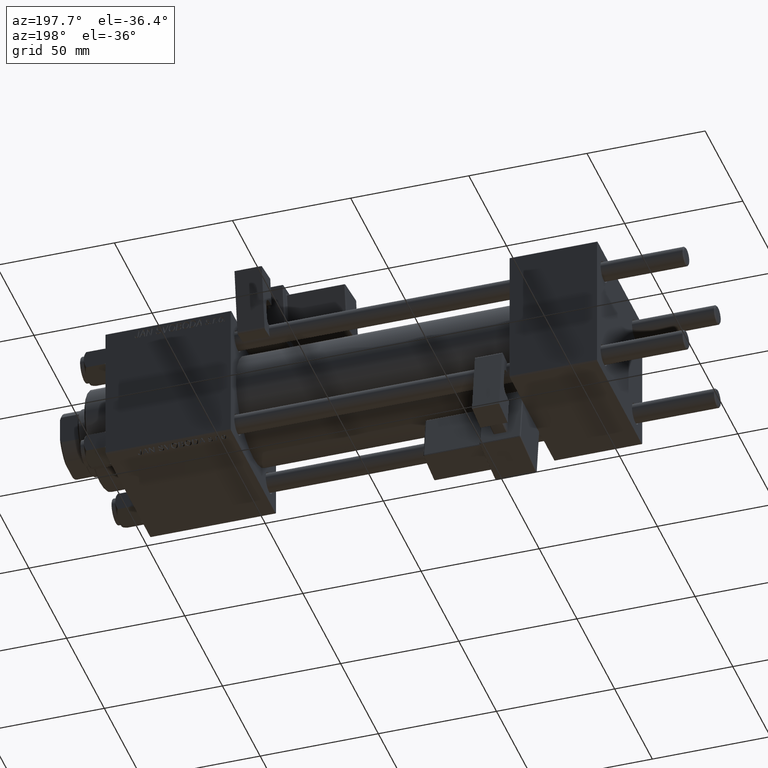
[diagram: clean part render]
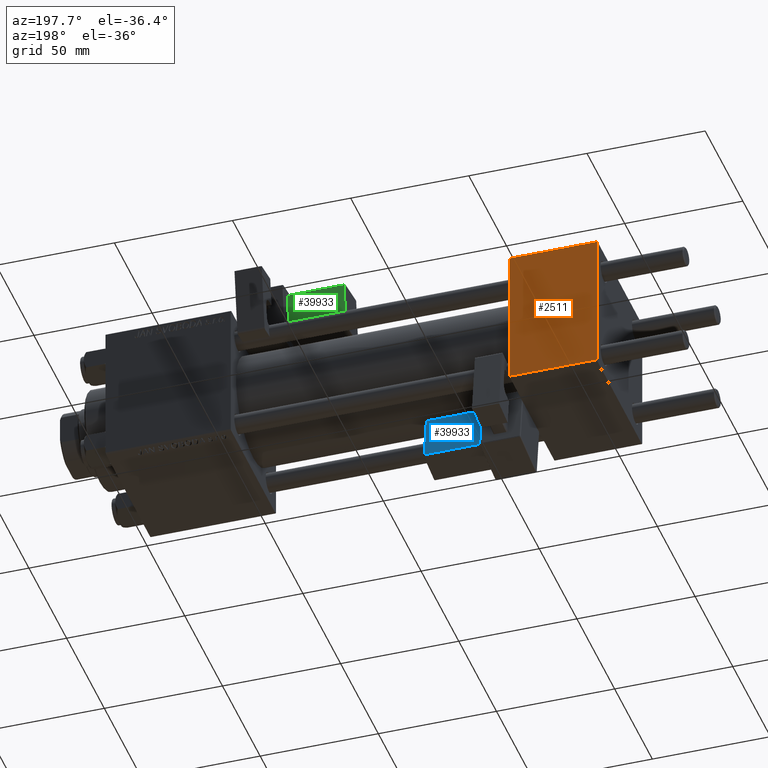
[diagram: same view with three faces highlighted in distinct colors, each labeled with its STEP entity id]
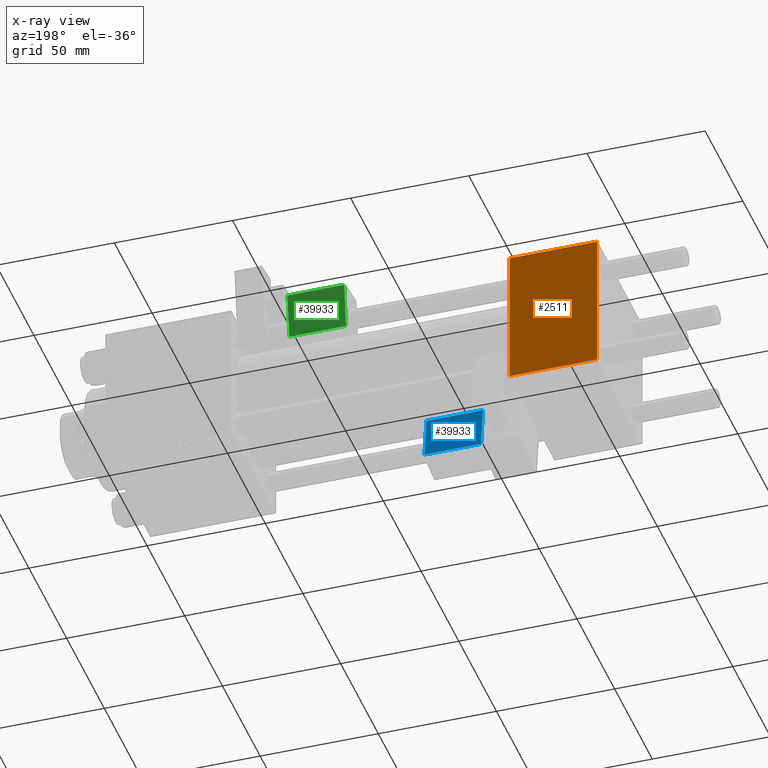
[diagram: x-ray of the same camera — body ghosted, the three highlighted faces saturated]
A machine part, auxiliary view with three faces highlighted in distinct colors.
The next image is the same camera in x-ray (body ghosted, the three faces saturated) — at least one of them is partly hidden behind the body in this view.
Their STEP definitions:

[orange] entity #2511 — the highlighted planar face has unit normal (0, 1, 0).
#1650 = DIRECTION ( 'NONE',  ( 0.000000000000000000, -0.000000000000000000, 1.000000000000000000 ) ) ;
#2511 = ADVANCED_FACE ( 'NONE', ( #18270 ), #42721, .T. ) ;
#3188 = EDGE_CURVE ( 'NONE', #26989, #27946, #31195, .T. ) ;
#7036 = LINE ( 'NONE', #46807, #44471 ) ;
#8151 = LINE ( 'NONE', #8415, #19174 ) ;
#8388 = CARTESIAN_POINT ( 'NONE',  ( 37.00000000000000000, 29.99999999999999289, -29.50000000000000000 ) ) ;
#8415 = CARTESIAN_POINT ( 'NONE',  ( 37.00000000000000000, 29.99999999999999289, 29.50000000000000000 ) ) ;
#9890 = CARTESIAN_POINT ( 'NONE',  ( 0.000000000000000000, 29.99999999999999289, 29.50000000000000000 ) ) ;
#12318 = VERTEX_POINT ( 'NONE', #29535 ) ;
#13428 = LINE ( 'NONE', #17645, #40431 ) ;
#15531 = EDGE_LOOP ( 'NONE', ( #27562, #27926, #25362, #43419 ) ) ;
#16028 = VERTEX_POINT ( 'NONE', #9890 ) ;
#17645 = CARTESIAN_POINT ( 'NONE',  ( 0.000000000000000000, 29.99999999999999289, 30.00000000000000000 ) ) ;
#18165 = DIRECTION ( 'NONE',  ( 0.000000000000000000, 0.000000000000000000, -1.000000000000000000 ) ) ;
#18270 = FACE_OUTER_BOUND ( 'NONE', #15531, .T. ) ;
#18808 = VECTOR ( 'NONE', #43063, 1000.000000000000000 ) ;
#19174 = VECTOR ( 'NONE', #19758, 1000.000000000000000 ) ;
#19357 = EDGE_CURVE ( 'NONE', #27946, #12318, #7036, .T. ) ;
#19758 = DIRECTION ( 'NONE',  ( 1.000000000000000000, 0.000000000000000000, 0.000000000000000000 ) ) ;
#21961 = DIRECTION ( 'NONE',  ( -0.000000000000000000, 1.000000000000000000, 0.000000000000000000 ) ) ;
#22821 = CARTESIAN_POINT ( 'NONE',  ( 37.00000000000000000, 29.99999999999999289, 30.00000000000000000 ) ) ;
#25362 = ORIENTED_EDGE ( 'NONE', *, *, #46375, .F. ) ;
#26989 = VERTEX_POINT ( 'NONE', #45500 ) ;
#27562 = ORIENTED_EDGE ( 'NONE', *, *, #3188, .T. ) ;
#27926 = ORIENTED_EDGE ( 'NONE', *, *, #19357, .T. ) ;
#27946 = VERTEX_POINT ( 'NONE', #8388 ) ;
#28850 = AXIS2_PLACEMENT_3D ( 'NONE', #33772, #21961, #1650 ) ;
#29535 = CARTESIAN_POINT ( 'NONE',  ( 0.000000000000000000, 29.99999999999999289, -29.50000000000000000 ) ) ;
#31195 = LINE ( 'NONE', #22821, #18808 ) ;
#33772 = CARTESIAN_POINT ( 'NONE',  ( 37.00000000000000000, 29.99999999999999289, 30.00000000000000000 ) ) ;
#34663 = EDGE_CURVE ( 'NONE', #16028, #26989, #8151, .T. ) ;
#40431 = VECTOR ( 'NONE', #18165, 1000.000000000000000 ) ;
#42319 = DIRECTION ( 'NONE',  ( -1.000000000000000000, 0.000000000000000000, 0.000000000000000000 ) ) ;
#42721 = PLANE ( 'NONE',  #28850 ) ;
#43063 = DIRECTION ( 'NONE',  ( 0.000000000000000000, 0.000000000000000000, -1.000000000000000000 ) ) ;
#43419 = ORIENTED_EDGE ( 'NONE', *, *, #34663, .T. ) ;
#44471 = VECTOR ( 'NONE', #42319, 1000.000000000000000 ) ;
#45500 = CARTESIAN_POINT ( 'NONE',  ( 37.00000000000000000, 29.99999999999999289, 29.50000000000000000 ) ) ;
#46375 = EDGE_CURVE ( 'NONE', #16028, #12318, #13428, .T. ) ;
#46807 = CARTESIAN_POINT ( 'NONE',  ( 37.00000000000000000, 29.99999999999999289, -29.50000000000000000 ) ) ;

[blue] entity #39933 — the highlighted planar face has unit normal (-0, -0.9902, -0.1399).
#555 = CARTESIAN_POINT ( 'NONE',  ( 33.25000000000000000, -17.24999999999999289, 21.50000000000000711 ) ) ;
#599 = VERTEX_POINT ( 'NONE', #21455 ) ;
#3202 = LINE ( 'NONE', #34558, #21904 ) ;
#9397 = LINE ( 'NONE', #25460, #22781 ) ;
#13515 = DIRECTION ( 'NONE',  ( 0.000000000000000000, -0.000000000000000000, -1.000000000000000000 ) ) ;
#14102 = ORIENTED_EDGE ( 'NONE', *, *, #25289, .T. ) ;
#15850 = LINE ( 'NONE', #31615, #21051 ) ;
#16089 = ORIENTED_EDGE ( 'NONE', *, *, #35808, .T. ) ;
#17019 = VERTEX_POINT ( 'NONE', #20654 ) ;
#18086 = DIRECTION ( 'NONE',  ( 1.000000000000000000, -0.000000000000000000, 1.334402673828313339E-16 ) ) ;
#19115 = VERTEX_POINT ( 'NONE', #23684 ) ;
#20654 = CARTESIAN_POINT ( 'NONE',  ( 9.250000000000001776, -17.24999999999999289, 21.50000000000000355 ) ) ;
#21051 = VECTOR ( 'NONE', #27691, 1000.000000000000000 ) ;
#21455 = CARTESIAN_POINT ( 'NONE',  ( 9.250000000000005329, -17.24999999999999289, 2.500000000000005773 ) ) ;
#21680 = FACE_OUTER_BOUND ( 'NONE', #39092, .T. ) ;
#21904 = VECTOR ( 'NONE', #31118, 1000.000000000000000 ) ;
#22781 = VECTOR ( 'NONE', #41500, 1000.000000000000000 ) ;
#23684 = CARTESIAN_POINT ( 'NONE',  ( 33.25000000000000000, -17.24999999999999289, 2.500000000000009326 ) ) ;
#25289 = EDGE_CURVE ( 'NONE', #599, #17019, #15850, .T. ) ;
#25460 = CARTESIAN_POINT ( 'NONE',  ( 33.75000000000000000, -17.24999999999999289, 2.500000000000009326 ) ) ;
#25983 = LINE ( 'NONE', #26246, #32613 ) ;
#26246 = CARTESIAN_POINT ( 'NONE',  ( 33.75000000000000000, -17.24999999999999289, 21.50000000000000711 ) ) ;
#26254 = EDGE_CURVE ( 'NONE', #45108, #19115, #3202, .T. ) ;
#26402 = CARTESIAN_POINT ( 'NONE',  ( 33.75000000000000000, -17.24999999999999289, 22.00000000000001066 ) ) ;
#27691 = DIRECTION ( 'NONE',  ( -1.334402673828313339E-16, 0.000000000000000000, 1.000000000000000000 ) ) ;
#27717 = AXIS2_PLACEMENT_3D ( 'NONE', #26402, #37963, #13515 ) ;
#30858 = ORIENTED_EDGE ( 'NONE', *, *, #42675, .T. ) ;
#31118 = DIRECTION ( 'NONE',  ( 1.734723475976807587E-16, -0.000000000000000000, -1.000000000000000000 ) ) ;
#31615 = CARTESIAN_POINT ( 'NONE',  ( 9.250000000000001776, -17.24999999999999289, 22.00000000000000711 ) ) ;
#32613 = VECTOR ( 'NONE', #18086, 1000.000000000000000 ) ;
#34558 = CARTESIAN_POINT ( 'NONE',  ( 33.25000000000000000, -17.24999999999999289, 2.000000000000010214 ) ) ;
#35808 = EDGE_CURVE ( 'NONE', #17019, #45108, #25983, .T. ) ;
#37448 = PLANE ( 'NONE',  #27717 ) ;
#37963 = DIRECTION ( 'NONE',  ( 0.000000000000000000, -1.000000000000000000, 0.000000000000000000 ) ) ;
#39092 = EDGE_LOOP ( 'NONE', ( #30858, #14102, #16089, #39187 ) ) ;
#39187 = ORIENTED_EDGE ( 'NONE', *, *, #26254, .T. ) ;
#39933 = ADVANCED_FACE ( 'NONE', ( #21680 ), #37448, .F. ) ;
#41500 = DIRECTION ( 'NONE',  ( -1.000000000000000000, 0.000000000000000000, -1.334402673828313339E-16 ) ) ;
#42675 = EDGE_CURVE ( 'NONE', #19115, #599, #9397, .T. ) ;
#45108 = VERTEX_POINT ( 'NONE', #555 ) ;

[green] entity #39933 — the highlighted planar face has unit normal (0, -0.9908, 0.1355).
#555 = CARTESIAN_POINT ( 'NONE',  ( 33.25000000000000000, -17.24999999999999289, 21.50000000000000711 ) ) ;
#599 = VERTEX_POINT ( 'NONE', #21455 ) ;
#3202 = LINE ( 'NONE', #34558, #21904 ) ;
#9397 = LINE ( 'NONE', #25460, #22781 ) ;
#13515 = DIRECTION ( 'NONE',  ( 0.000000000000000000, -0.000000000000000000, -1.000000000000000000 ) ) ;
#14102 = ORIENTED_EDGE ( 'NONE', *, *, #25289, .T. ) ;
#15850 = LINE ( 'NONE', #31615, #21051 ) ;
#16089 = ORIENTED_EDGE ( 'NONE', *, *, #35808, .T. ) ;
#17019 = VERTEX_POINT ( 'NONE', #20654 ) ;
#18086 = DIRECTION ( 'NONE',  ( 1.000000000000000000, -0.000000000000000000, 1.334402673828313339E-16 ) ) ;
#19115 = VERTEX_POINT ( 'NONE', #23684 ) ;
#20654 = CARTESIAN_POINT ( 'NONE',  ( 9.250000000000001776, -17.24999999999999289, 21.50000000000000355 ) ) ;
#21051 = VECTOR ( 'NONE', #27691, 1000.000000000000000 ) ;
#21455 = CARTESIAN_POINT ( 'NONE',  ( 9.250000000000005329, -17.24999999999999289, 2.500000000000005773 ) ) ;
#21680 = FACE_OUTER_BOUND ( 'NONE', #39092, .T. ) ;
#21904 = VECTOR ( 'NONE', #31118, 1000.000000000000000 ) ;
#22781 = VECTOR ( 'NONE', #41500, 1000.000000000000000 ) ;
#23684 = CARTESIAN_POINT ( 'NONE',  ( 33.25000000000000000, -17.24999999999999289, 2.500000000000009326 ) ) ;
#25289 = EDGE_CURVE ( 'NONE', #599, #17019, #15850, .T. ) ;
#25460 = CARTESIAN_POINT ( 'NONE',  ( 33.75000000000000000, -17.24999999999999289, 2.500000000000009326 ) ) ;
#25983 = LINE ( 'NONE', #26246, #32613 ) ;
#26246 = CARTESIAN_POINT ( 'NONE',  ( 33.75000000000000000, -17.24999999999999289, 21.50000000000000711 ) ) ;
#26254 = EDGE_CURVE ( 'NONE', #45108, #19115, #3202, .T. ) ;
#26402 = CARTESIAN_POINT ( 'NONE',  ( 33.75000000000000000, -17.24999999999999289, 22.00000000000001066 ) ) ;
#27691 = DIRECTION ( 'NONE',  ( -1.334402673828313339E-16, 0.000000000000000000, 1.000000000000000000 ) ) ;
#27717 = AXIS2_PLACEMENT_3D ( 'NONE', #26402, #37963, #13515 ) ;
#30858 = ORIENTED_EDGE ( 'NONE', *, *, #42675, .T. ) ;
#31118 = DIRECTION ( 'NONE',  ( 1.734723475976807587E-16, -0.000000000000000000, -1.000000000000000000 ) ) ;
#31615 = CARTESIAN_POINT ( 'NONE',  ( 9.250000000000001776, -17.24999999999999289, 22.00000000000000711 ) ) ;
#32613 = VECTOR ( 'NONE', #18086, 1000.000000000000000 ) ;
#34558 = CARTESIAN_POINT ( 'NONE',  ( 33.25000000000000000, -17.24999999999999289, 2.000000000000010214 ) ) ;
#35808 = EDGE_CURVE ( 'NONE', #17019, #45108, #25983, .T. ) ;
#37448 = PLANE ( 'NONE',  #27717 ) ;
#37963 = DIRECTION ( 'NONE',  ( 0.000000000000000000, -1.000000000000000000, 0.000000000000000000 ) ) ;
#39092 = EDGE_LOOP ( 'NONE', ( #30858, #14102, #16089, #39187 ) ) ;
#39187 = ORIENTED_EDGE ( 'NONE', *, *, #26254, .T. ) ;
#39933 = ADVANCED_FACE ( 'NONE', ( #21680 ), #37448, .F. ) ;
#41500 = DIRECTION ( 'NONE',  ( -1.000000000000000000, 0.000000000000000000, -1.334402673828313339E-16 ) ) ;
#42675 = EDGE_CURVE ( 'NONE', #19115, #599, #9397, .T. ) ;
#45108 = VERTEX_POINT ( 'NONE', #555 ) ;